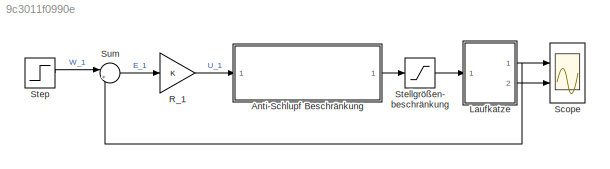
MODEL slx_9c3011f0990e
KIND model
CONFIG AbsTol = auto
CONFIG EnableMultiTasking = off
CONFIG FixedStep = 0.01
CONFIG MaxStep = auto
CONFIG MinStep = auto
CONFIG RelTol = 1e-3
CONFIG SampleTimeConstraint = Unconstrained
CONFIG Solver = FixedStepAuto
CONFIG SolverName = FixedStepAuto
CONFIG StartTime = 0.0
CONFIG StopTime = 50.0
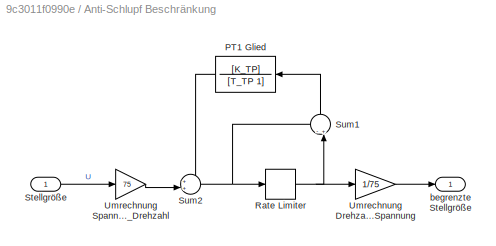
BLOCK [SubSystem] Anti-Schlupf Beschränkung
  Ports = [1, 1]
  RequestExecContextInheritance = off
  Variant = off
BLOCK [TransferFcn] Anti-Schlupf Beschränkung/PT1 Glied
  Denominator = [T_TP 1]
  Numerator = [K_TP]
BLOCK [RateLimiter] Anti-Schlupf Beschränkung/Rate Limiter
  FallingSlewLimit = -9.57
  RisingSlewLimit = 9.57
  SampleTimeMode = inherited
BLOCK [Inport] Anti-Schlupf Beschränkung/Stellgröße
  IconDisplay = Port number
BLOCK [Sum] Anti-Schlupf Beschränkung/Sum1
  IconShape = round
  InputSameDT = off
  Inputs = -+|
  OutDataTypeStr = Inherit: Inherit via internal rule
  Ports = [2, 1]
  SaturateOnIntegerOverflow = off
BLOCK [Sum] Anti-Schlupf Beschränkung/Sum2
  IconShape = round
  InputSameDT = off
  Inputs = ++|
  OutDataTypeStr = Inherit: Inherit via internal rule
  Ports = [2, 1]
  SaturateOnIntegerOverflow = off
BLOCK [Gain] Anti-Schlupf Beschränkung/Umrechnung Drehzahl_Spannung
  Gain = 1/75
  OutDataTypeStr = Inherit: Inherit via internal rule
  ParamDataTypeStr = Inherit: Inherit via internal rule
  SaturateOnIntegerOverflow = off
BLOCK [Gain] Anti-Schlupf Beschränkung/Umrechnung Spannung_Drehzahl
  Gain = 75
  OutDataTypeStr = Inherit: Inherit via internal rule
  ParamDataTypeStr = Inherit: Inherit via internal rule
  SaturateOnIntegerOverflow = off
BLOCK [Outport] Anti-Schlupf Beschränkung/begrenzte Stellgröße
  IconDisplay = Port number
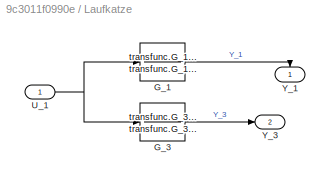
BLOCK [SubSystem] Laufkatze
  Ports = [1, 2]
  RequestExecContextInheritance = off
  Variant = off
BLOCK [TransferFcn] Laufkatze/G_1
  Denominator = transfunc.G_1_denom
  Numerator = transfunc.G_1_numer
BLOCK [TransferFcn] Laufkatze/G_3
  Denominator = transfunc.G_3_denom
  Numerator = transfunc.G_3_numer
BLOCK [Inport] Laufkatze/U_1
  IconDisplay = Port number
BLOCK [Outport] Laufkatze/Y_1
  IconDisplay = Port number
BLOCK [Outport] Laufkatze/Y_3
  IconDisplay = Port number
  Port = 2
BLOCK [Gain] R_1
  OutDataTypeStr = Inherit: Inherit via internal rule
  ParamDataTypeStr = Inherit: Inherit via internal rule
  SaturateOnIntegerOverflow = off
BLOCK [Scope] Scope
  NumInputPorts = 2
  Ports = [2]
  ScopeSpecificationString = Simulink.scopes.TimeScopeBlockCfg('CurrentConfiguration', extmgr.ConfigurationSet(extmgr.Configuration('Core','General UI',true),extmgr.Configuration('Core','Source UI',true),extmgr.Configuration('Sources','WiredSimulink',true),extmgr.Configuration('Visuals','Time Domain',true,'SerializedDisplays',{struct('MinYLimReal','-0.6974','MaxYLimReal','6.27662','YLabelReal','','MinYLimMag','0.00000','MaxYL...<+2058ch>
BLOCK [Saturate] Stellgrößen- beschränkung
  InputPortMap = u0
  LowerLimit = -1
  Ports = [1, 1]
  UpperLimit = 1
BLOCK [Step] Step
  SampleTime = 0
  Time = 0
BLOCK [Sum] Sum
  IconShape = round
  InputSameDT = off
  Inputs = |+-
  OutDataTypeStr = Inherit: Inherit via internal rule
  Ports = [2, 1]
  SaturateOnIntegerOverflow = off
LINE Anti-Schlupf Beschränkung/PT1 Glied:1 -> Anti-Schlupf Beschränkung/Sum2:1
NET Anti-Schlupf Beschränkung/Rate Limiter:1 -> Anti-Schlupf Beschränkung/Sum1:2, Anti-Schlupf Beschränkung/Umrechnung Drehzahl_Spannung:1
LINE Anti-Schlupf Beschränkung/Stellgröße:1 -> Anti-Schlupf Beschränkung/Umrechnung Spannung_Drehzahl:1
LINE Anti-Schlupf Beschränkung/Sum1:1 -> Anti-Schlupf Beschränkung/PT1 Glied:1
NET Anti-Schlupf Beschränkung/Sum2:1 -> Anti-Schlupf Beschränkung/Rate Limiter:1, Anti-Schlupf Beschränkung/Sum1:1
LINE Anti-Schlupf Beschränkung/Umrechnung Drehzahl_Spannung:1 -> Anti-Schlupf Beschränkung/begrenzte Stellgröße:1
LINE Anti-Schlupf Beschränkung/Umrechnung Spannung_Drehzahl:1 -> Anti-Schlupf Beschränkung/Sum2:2
LINE Anti-Schlupf Beschränkung:1 -> Stellgrößen- beschränkung:1
LINE Laufkatze/G_1:1 -> Laufkatze/Y_1:1
LINE Laufkatze/G_3:1 -> Laufkatze/Y_3:1
NET Laufkatze/U_1:1 -> Laufkatze/G_1:1, Laufkatze/G_3:1
NET Laufkatze:1 -> Scope:1, Sum:2
LINE Laufkatze:2 -> Scope:2
LINE R_1:1 -> Anti-Schlupf Beschränkung:1
LINE Stellgrößen- beschränkung:1 -> Laufkatze:1
LINE Step:1 -> Sum:1
LINE Sum:1 -> R_1:1
note: NET lines group one-source signal fan-out (src -> all destinations, sorted); 1:1 wires keep LINE
